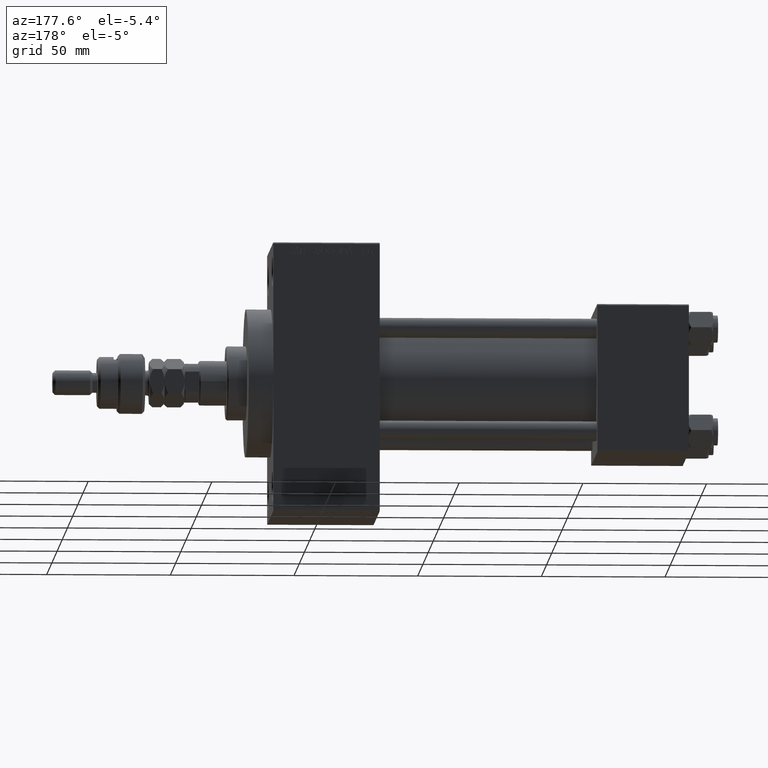
[diagram: clean part render]
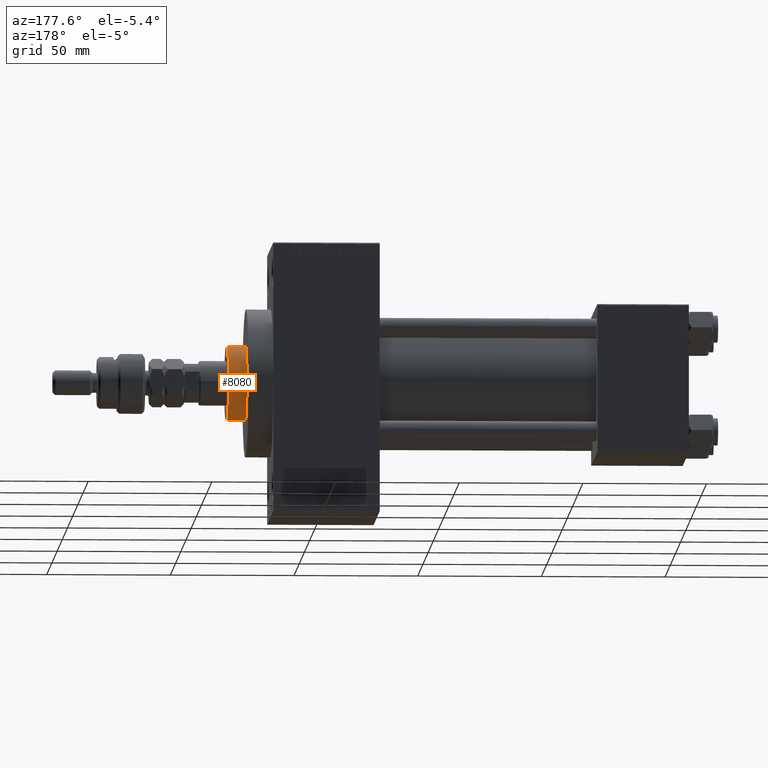
[diagram: same view with one face highlighted and labeled with its STEP entity id]
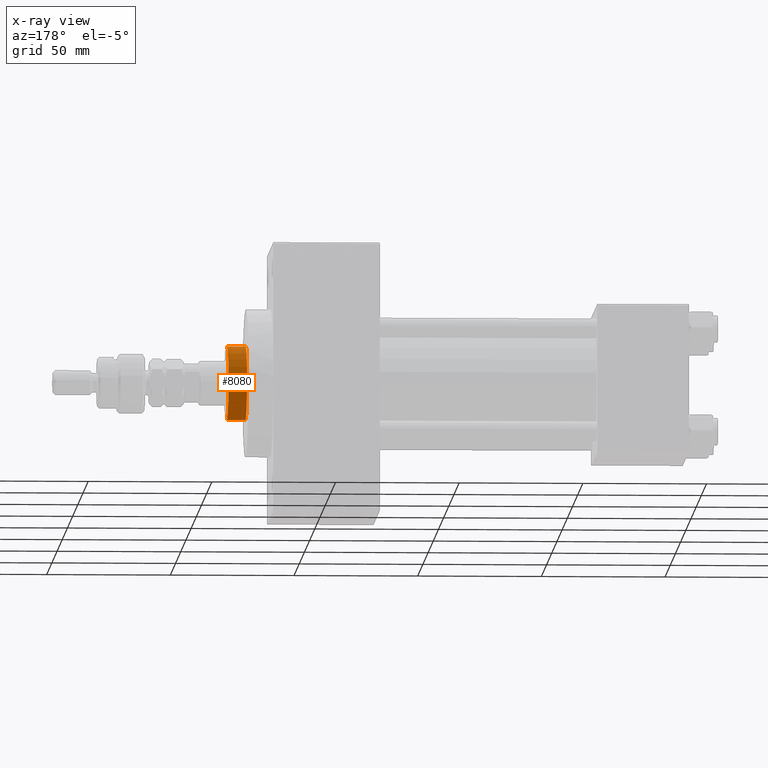
[diagram: x-ray of the same camera — body ghosted, the highlighted face saturated]
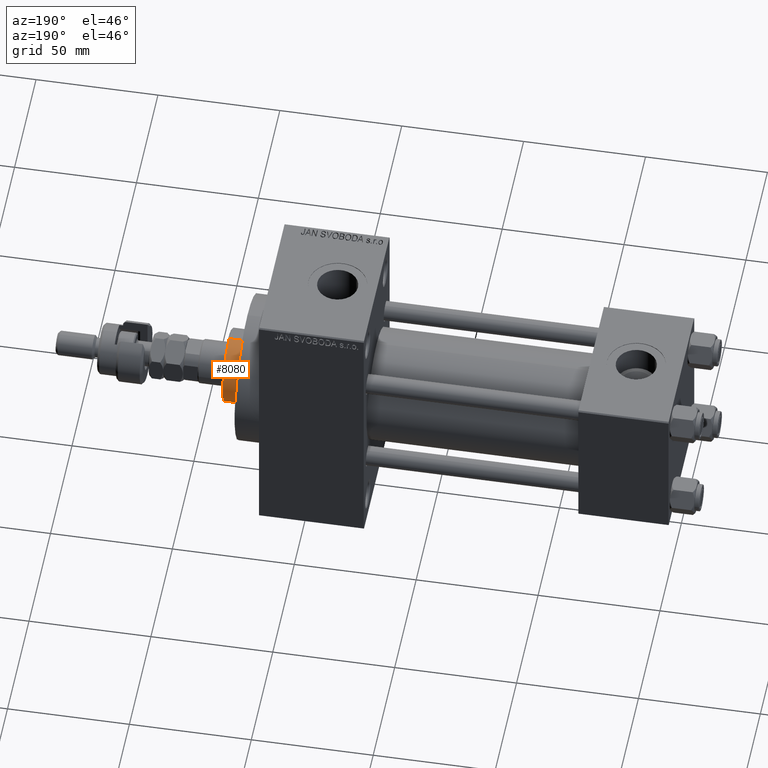
[diagram: same view with one face highlighted and labeled with its STEP entity id]
A machine part, auxiliary view. The second image highlights one B-rep face of the part: STEP entity #8080.
The next image is the same camera in x-ray: the body ghosted, the highlighted face saturated — about 0% of this face is hidden behind the body in this view.
A second angle (auxiliary view) of the same face is appended — the face is thin or edge-on in the first view.
In plain terms, the highlighted cylindrical surface (partial cylindrical patch) has radius 15 mm, axis along (-1, 0, 0).
Its self-contained STEP definition (entity closure, byte-faithful):
#1245 = CIRCLE ( 'NONE', #48893, 15.00000000000000000 ) ;
#1377 = AXIS2_PLACEMENT_3D ( 'NONE', #8827, #16432, #47285 ) ;
#1851 = VECTOR ( 'NONE', #39706, 1000.000000000000000 ) ;
#3571 = EDGE_CURVE ( 'NONE', #21447, #35903, #20691, .T. ) ;
#5702 = ORIENTED_EDGE ( 'NONE', *, *, #33502, .T. ) ;
#8075 = ORIENTED_EDGE ( 'NONE', *, *, #36987, .T. ) ;
#8080 = ADVANCED_FACE ( 'NONE', ( #35953 ), #12678, .T. ) ;
#8827 = CARTESIAN_POINT ( 'NONE',  ( 0.000000000000000000, 0.000000000000000000, 43.25999999999999801 ) ) ;
#8880 = DIRECTION ( 'NONE',  ( -1.000000000000000000, 0.000000000000000000, 0.000000000000000000 ) ) ;
#10501 = VECTOR ( 'NONE', #44709, 1000.000000000000000 ) ;
#11823 = ORIENTED_EDGE ( 'NONE', *, *, #3571, .T. ) ;
#12678 = CYLINDRICAL_SURFACE ( 'NONE', #40014, 15.00000000000000000 ) ;
#12696 = CIRCLE ( 'NONE', #1377, 15.00000000000000000 ) ;
#12917 = DIRECTION ( 'NONE',  ( -0.000000000000000000, -0.000000000000000000, -1.000000000000000000 ) ) ;
#15271 = DIRECTION ( 'NONE',  ( 1.000000000000000000, 0.000000000000000000, 0.000000000000000000 ) ) ;
#16432 = DIRECTION ( 'NONE',  ( 0.000000000000000000, 0.000000000000000000, 1.000000000000000000 ) ) ;
#16479 = CARTESIAN_POINT ( 'NONE',  ( 0.000000000000000000, 0.000000000000000000, 51.25999999999999801 ) ) ;
#19243 = EDGE_LOOP ( 'NONE', ( #33662, #5702, #11823, #8075 ) ) ;
#20691 = LINE ( 'NONE', #23764, #1851 ) ;
#20774 = CARTESIAN_POINT ( 'NONE',  ( -15.00000000000000000, 0.000000000000000000, 50.75999999999998380 ) ) ;
#21447 = VERTEX_POINT ( 'NONE', #20774 ) ;
#22097 = CARTESIAN_POINT ( 'NONE',  ( 0.000000000000000000, 0.000000000000000000, 50.75999999999998380 ) ) ;
#23142 = CARTESIAN_POINT ( 'NONE',  ( 15.00000000000000000, 1.836970198721029589E-15, 43.25999999999999801 ) ) ;
#23764 = CARTESIAN_POINT ( 'NONE',  ( -15.00000000000000000, 0.000000000000000000, 51.25999999999999801 ) ) ;
#24319 = VERTEX_POINT ( 'NONE', #23142 ) ;
#25718 = LINE ( 'NONE', #40175, #10501 ) ;
#32157 = CARTESIAN_POINT ( 'NONE',  ( -15.00000000000000000, 0.000000000000000000, 43.25999999999999801 ) ) ;
#33502 = EDGE_CURVE ( 'NONE', #37399, #21447, #1245, .T. ) ;
#33662 = ORIENTED_EDGE ( 'NONE', *, *, #47064, .F. ) ;
#35903 = VERTEX_POINT ( 'NONE', #32157 ) ;
#35953 = FACE_OUTER_BOUND ( 'NONE', #19243, .T. ) ;
#36987 = EDGE_CURVE ( 'NONE', #35903, #24319, #12696, .T. ) ;
#37399 = VERTEX_POINT ( 'NONE', #41284 ) ;
#39706 = DIRECTION ( 'NONE',  ( -0.000000000000000000, -0.000000000000000000, -1.000000000000000000 ) ) ;
#40014 = AXIS2_PLACEMENT_3D ( 'NONE', #16479, #12917, #8880 ) ;
#40175 = CARTESIAN_POINT ( 'NONE',  ( 15.00000000000000000, 1.836970198721029589E-15, 51.25999999999999801 ) ) ;
#41284 = CARTESIAN_POINT ( 'NONE',  ( 15.00000000000000000, 1.836970198721029589E-15, 50.75999999999998380 ) ) ;
#44709 = DIRECTION ( 'NONE',  ( -0.000000000000000000, -0.000000000000000000, -1.000000000000000000 ) ) ;
#46142 = DIRECTION ( 'NONE',  ( 0.000000000000000000, 0.000000000000000000, -1.000000000000000000 ) ) ;
#47064 = EDGE_CURVE ( 'NONE', #37399, #24319, #25718, .T. ) ;
#47285 = DIRECTION ( 'NONE',  ( 1.000000000000000000, 0.000000000000000000, 0.000000000000000000 ) ) ;
#48893 = AXIS2_PLACEMENT_3D ( 'NONE', #22097, #46142, #15271 ) ;